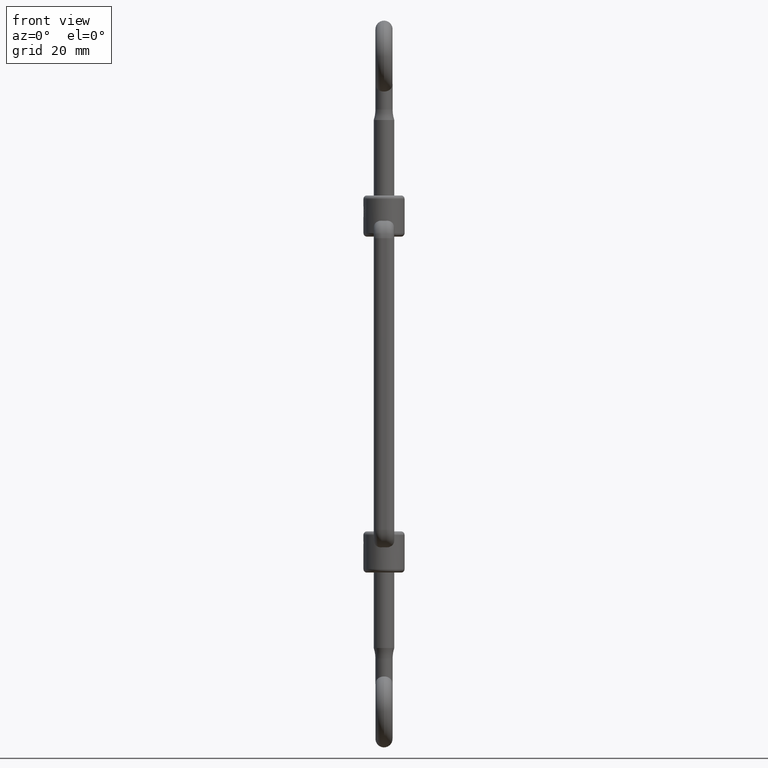
[diagram: clean part render]
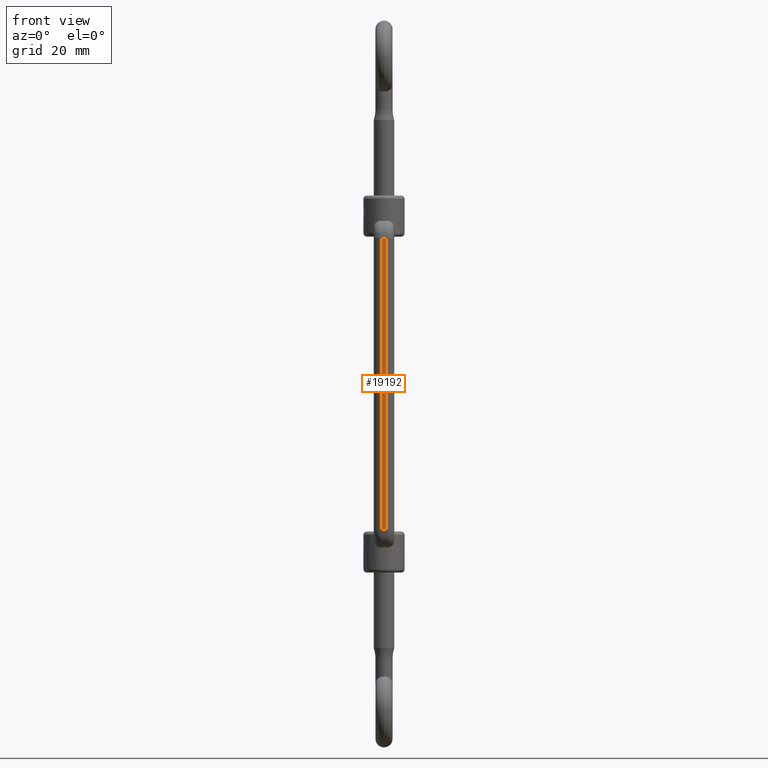
[diagram: same view with one face highlighted and labeled with its STEP entity id]
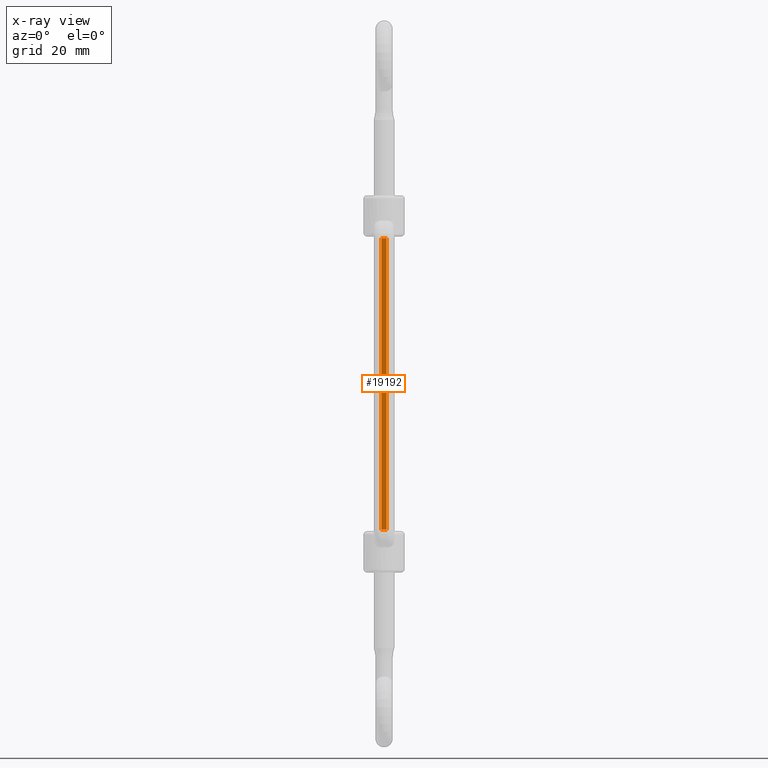
[diagram: x-ray of the same camera — body ghosted, the highlighted face saturated]
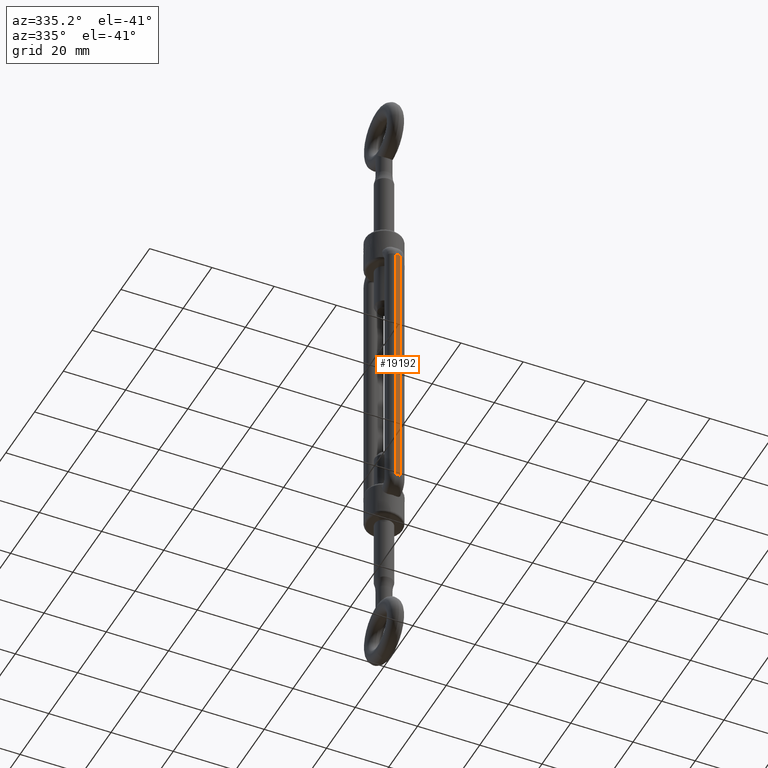
[diagram: same view with one face highlighted and labeled with its STEP entity id]
A machine part, front view. The second image highlights one B-rep face of the part: STEP entity #19192.
The next image is the same camera in x-ray: the body ghosted, the highlighted face saturated — about 0% of this face is hidden behind the body in this view.
A second angle (auxiliary view) of the same face is appended — the face is thin or edge-on in the first view.
In plain terms, the highlighted planar face has unit normal (0, 1, -0).
Its self-contained STEP definition (entity closure, byte-faithful):
#34 = EDGE_CURVE ( 'NONE', #4025, #11931, #7953, .T. ) ;
#48 = CARTESIAN_POINT ( 'NONE',  ( -0.7500000000000015500, -9.499999999999987600, 42.49999999999998600 ) ) ;
#331 = VECTOR ( 'NONE', #7912, 1000.000000000000000 ) ;
#1465 = DIRECTION ( 'NONE',  ( 0.0000000000000000000, 2.040851148208008500E-017, 1.000000000000000000 ) ) ;
#2116 = FACE_OUTER_BOUND ( 'NONE', #17912, .T. ) ;
#2573 = ORIENTED_EDGE ( 'NONE', *, *, #13995, .T. ) ;
#2803 = DIRECTION ( 'NONE',  ( 0.0000000000000000000, -2.040851148208008500E-017, -1.000000000000000000 ) ) ;
#4025 = VERTEX_POINT ( 'NONE', #11455 ) ;
#4463 = VERTEX_POINT ( 'NONE', #14126 ) ;
#5581 = LINE ( 'NONE', #13573, #13532 ) ;
#6045 = LINE ( 'NONE', #12688, #331 ) ;
#6161 = CARTESIAN_POINT ( 'NONE',  ( -0.7500000000000015500, -9.499999999999989300, -42.50000000000000000 ) ) ;
#6516 = ORIENTED_EDGE ( 'NONE', *, *, #19473, .F. ) ;
#6929 = AXIS2_PLACEMENT_3D ( 'NONE', #48, #7993, #1465 ) ;
#7912 = DIRECTION ( 'NONE',  ( 1.000000000000000000, 0.0000000000000000000, 0.0000000000000000000 ) ) ;
#7922 = CARTESIAN_POINT ( 'NONE',  ( -0.7500000000000015500, -9.499999999999989300, -42.50000000000000000 ) ) ;
#7953 = LINE ( 'NONE', #18880, #12663 ) ;
#7993 = DIRECTION ( 'NONE',  ( 0.0000000000000000000, 1.000000000000000000, -2.040851148208008500E-017 ) ) ;
#9145 = ORIENTED_EDGE ( 'NONE', *, *, #34, .T. ) ;
#11455 = CARTESIAN_POINT ( 'NONE',  ( -0.7500000000000015500, -9.499999999999987600, 42.49999999999998600 ) ) ;
#11931 = VERTEX_POINT ( 'NONE', #7922 ) ;
#12663 = VECTOR ( 'NONE', #2803, 1000.000000000000000 ) ;
#12688 = CARTESIAN_POINT ( 'NONE',  ( -0.7500000000000015500, -9.499999999999987600, 42.49999999999998600 ) ) ;
#13479 = VECTOR ( 'NONE', #20489, 1000.000000000000000 ) ;
#13532 = VECTOR ( 'NONE', #18341, 1000.000000000000000 ) ;
#13573 = CARTESIAN_POINT ( 'NONE',  ( 0.7500000000000015500, -9.499999999999987600, 42.49999999999998600 ) ) ;
#13635 = VERTEX_POINT ( 'NONE', #19352 ) ;
#13933 = EDGE_CURVE ( 'NONE', #4025, #4463, #6045, .T. ) ;
#13995 = EDGE_CURVE ( 'NONE', #11931, #13635, #16722, .T. ) ;
#14126 = CARTESIAN_POINT ( 'NONE',  ( 0.7500000000000015500, -9.499999999999987600, 42.49999999999998600 ) ) ;
#16722 = LINE ( 'NONE', #6161, #13479 ) ;
#17484 = PLANE ( 'NONE',  #6929 ) ;
#17912 = EDGE_LOOP ( 'NONE', ( #18204, #9145, #2573, #6516 ) ) ;
#18204 = ORIENTED_EDGE ( 'NONE', *, *, #13933, .F. ) ;
#18341 = DIRECTION ( 'NONE',  ( 0.0000000000000000000, -2.040851148208008500E-017, -1.000000000000000000 ) ) ;
#18880 = CARTESIAN_POINT ( 'NONE',  ( -0.7500000000000015500, -9.499999999999987600, 42.49999999999998600 ) ) ;
#19192 = ADVANCED_FACE ( 'NONE', ( #2116 ), #17484, .F. ) ;
#19352 = CARTESIAN_POINT ( 'NONE',  ( 0.7500000000000015500, -9.499999999999989300, -42.50000000000000000 ) ) ;
#19473 = EDGE_CURVE ( 'NONE', #4463, #13635, #5581, .T. ) ;
#20489 = DIRECTION ( 'NONE',  ( 1.000000000000000000, 0.0000000000000000000, 0.0000000000000000000 ) ) ;